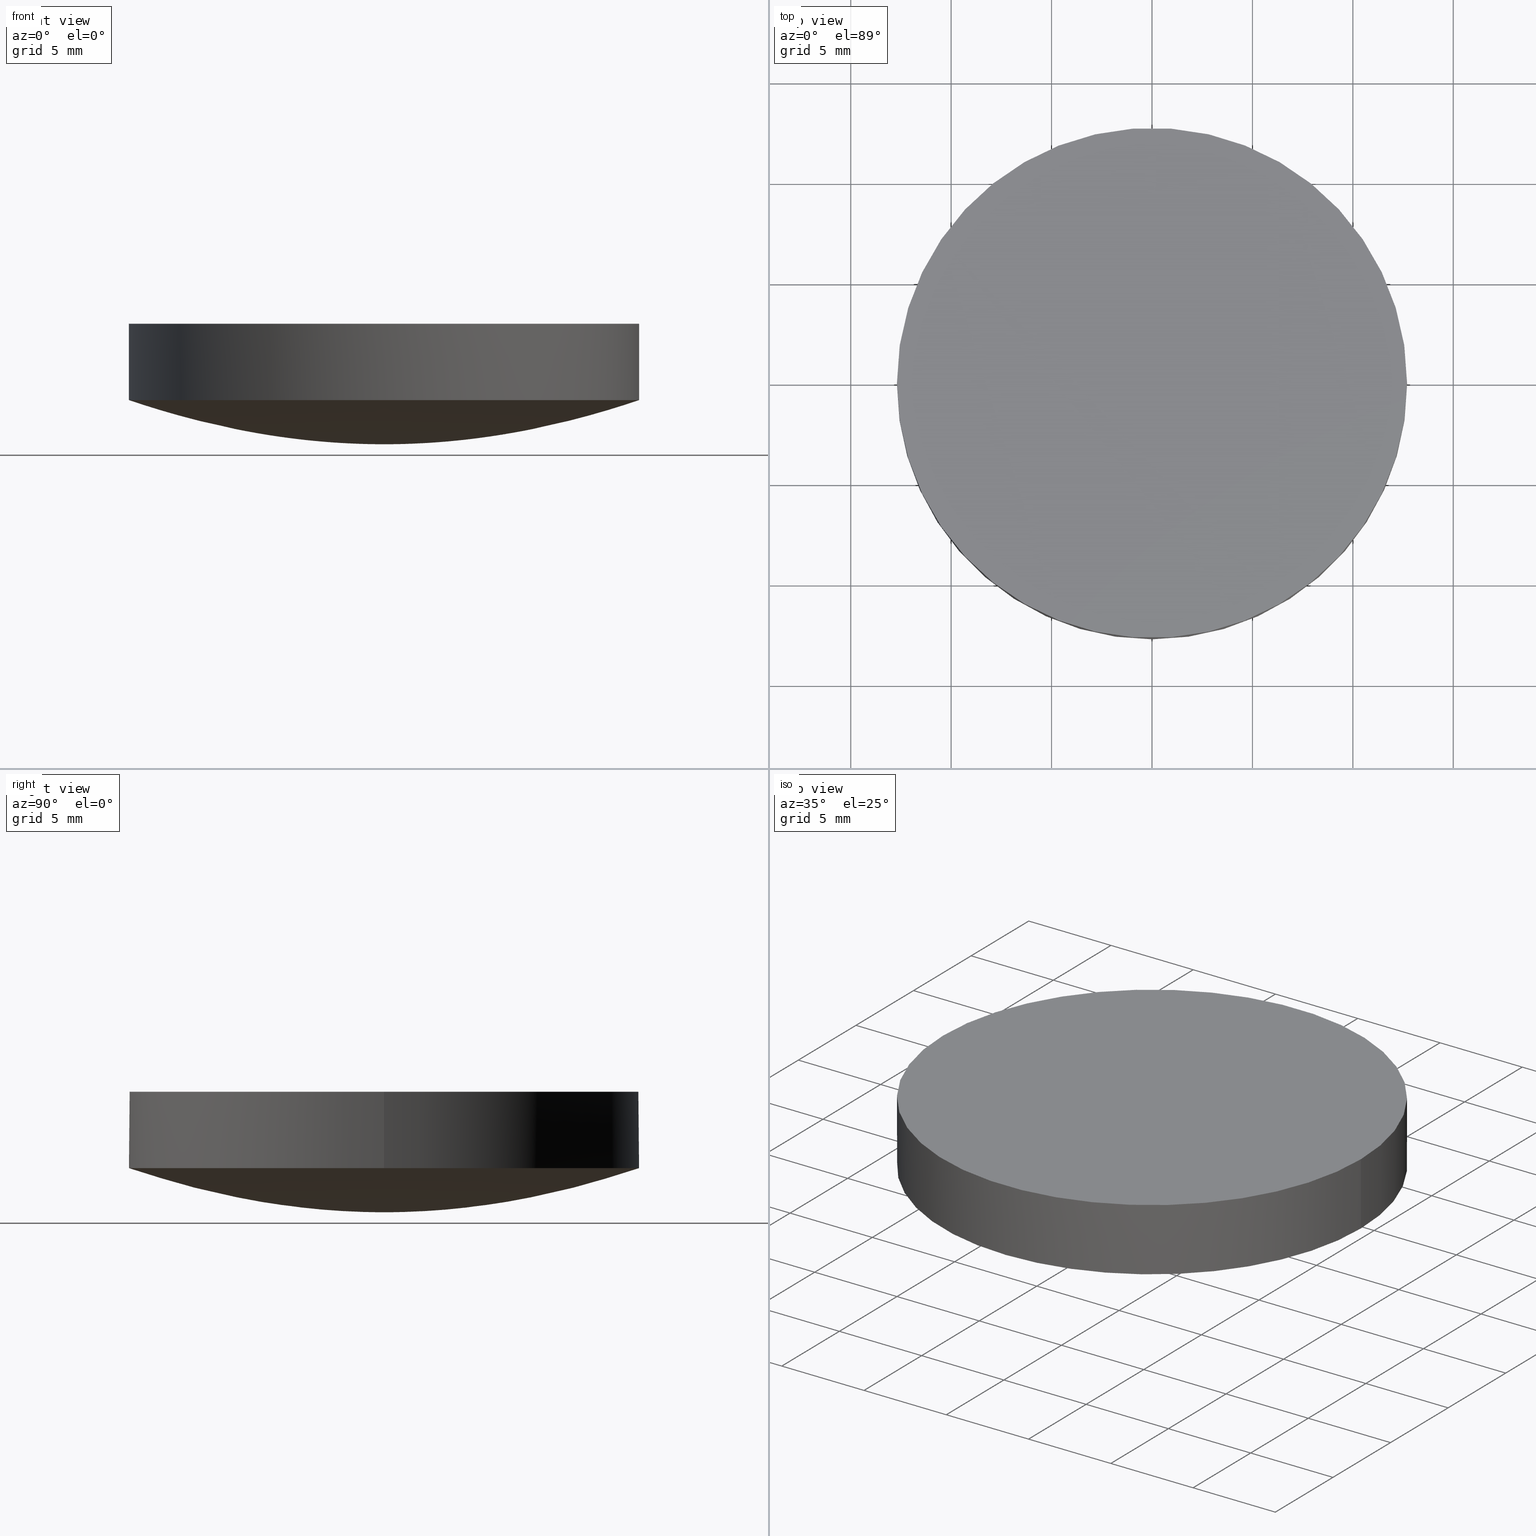
[diagram: canonical four-view strip — front | top / right | iso, engineering-drawing reading convention]
A machine part, canonical four-view strip (front | top / right | iso — engineering-drawing reading convention). The complete STEP part file that produces these views, byte-faithful:
ISO-10303-21;
HEADER;
FILE_DESCRIPTION (( 'STEP AP203' ),
    '1' );
FILE_NAME ('140007.STEP',
    '2021-03-15T05:15:59',
    ( '' ),
    ( '' ),
    'SwSTEP 2.0',
    'SolidWorks 2020',
    '' );
FILE_SCHEMA (( 'CONFIG_CONTROL_DESIGN' ));
ENDSEC;

DATA;
#1 = CARTESIAN_POINT ( 'NONE',  ( -3.241005728572560246E-17, -0.2646482014919789849, 0.000000000000000000 ) ) ;
#2 = DIRECTION ( 'NONE',  ( -6.993530863780509846E-17, -4.890947394265059749E-33, -1.000000000000000000 ) ) ;
#3 = CC_DESIGN_DATE_AND_TIME_ASSIGNMENT ( #75, #244, ( #543 ) ) ;
#4 = CARTESIAN_POINT ( 'NONE',  ( 12.00034429507980072, -2.204427484445339934E-15, 1.961206610540939810 ) ) ;
#5 = DIRECTION ( 'NONE',  ( -0.000000000000000000, -0.000000000000000000, -1.000000000000000000 ) ) ;
#6 = APPROVAL_STATUS ( 'not_yet_approved' ) ;
#7 = VECTOR ( 'NONE', #124, 1000.000000000000000 ) ;
#8 = CARTESIAN_POINT ( 'NONE',  ( 0.000000000000000000, 5.999939165251210405, 0.4967461427249240669 ) ) ;
#9 = VERTEX_POINT ( 'NONE', #460 ) ;
#10 = CARTESIAN_POINT ( 'NONE',  ( -5.117495180305819957, 5.117495180305819957, 0.3610946254766859709 ) ) ;
#11 = CARTESIAN_POINT ( 'NONE',  ( -9.881579680847281111, -9.881579680847281111, 1.340326071960550092 ) ) ;
#12 = CARTESIAN_POINT ( 'NONE',  ( 0.000000000000000000, 8.293636240054830466, 0.9473380225862650938 ) ) ;
#13 = CARTESIAN_POINT ( 'NONE',  ( -6.705604643652271157, 6.705604643652271157, 0.6204309067409240486 ) ) ;
#14 = CARTESIAN_POINT ( 'NONE',  ( -5.999939165251211293, -5.999939165251200635, 0.4967461427249240669 ) ) ;
#15 = CARTESIAN_POINT ( 'NONE',  ( -11.12050896531350119, 6.809347854630319951E-16, 1.686076382450860001 ) ) ;
#16 = AXIS2_PLACEMENT_3D ( 'NONE', #462, #336, #466 ) ;
#17 = DESIGN_CONTEXT ( 'detailed design', #130, 'design' ) ;
#18 = CARTESIAN_POINT ( 'NONE',  ( 5.117495180305819957, 5.117495180305819957, 0.3610946254766859709 ) ) ;
#19 = CARTESIAN_POINT ( 'NONE',  ( 7.587997314144440786, -1.393892493405849964E-15, 0.7937850246568419754 ) ) ;
#20 = CARTESIAN_POINT ( 'NONE',  ( -3.529323060183090277, 3.529323060183090277, 0.1705053634074679969 ) ) ;
#21 = CARTESIAN_POINT ( 'NONE',  ( 7.587997314144440786, 7.587997314144440786, 0.7937850246568420864 ) ) ;
#22 = CARTESIAN_POINT ( 'NONE',  ( 0.000000000000000000, 0.000000000000000000, 0.000000000000000000 ) ) ;
#23 = CARTESIAN_POINT ( 'NONE',  ( 5.999939165251200635, -5.999939165251211293, 0.4967461427249240669 ) ) ;
#24 = CARTESIAN_POINT ( 'NONE',  ( -1.189029927616370324E-16, -0.9709166173007780509, 0.007826623216660749671 ) ) ;
#25 = CARTESIAN_POINT ( 'NONE',  ( 0.9709166173007780509, 0.9709166173007770517, 0.007826623216660751406 ) ) ;
#26 = CARTESIAN_POINT ( 'NONE',  ( 3.529323060183090277, 3.529323060183090277, 0.1705053634074679969 ) ) ;
#27 = CARTESIAN_POINT ( 'NONE',  ( 3.529323060183089833, -6.483261283215241177E-16, 0.1705053634074680247 ) ) ;
#28 = CARTESIAN_POINT ( 'NONE',  ( 0.000000000000000000, 4.411807035218689776, 0.2678392450587179785 ) ) ;
#29 = CARTESIAN_POINT ( 'NONE',  ( -7.347806293803730947E-16, -5.999939165251210405, 0.4967461427249240669 ) ) ;
#30 = CARTESIAN_POINT ( 'NONE',  ( 3.529323060183090277, -3.529323060183090277, 0.1705053634074679969 ) ) ;
#31 = CALENDAR_DATE ( 2021, 15, 3 ) ;
#32 = CARTESIAN_POINT ( 'NONE',  ( 0.2646482014919789294, 0.2646482014919789294, 0.000000000000000000 ) ) ;
#33 = EDGE_CURVE ( 'NONE', #9, #488, #210, .T. ) ;
#34 = CARTESIAN_POINT ( 'NONE',  ( -1.555301434917141588E-15, -12.70000000000000462, 2.197451818612039975 ) ) ;
#35 =( NAMED_UNIT ( * ) PLANE_ANGLE_UNIT ( ) SI_UNIT ( $, .RADIAN. ) );
#36 = CARTESIAN_POINT ( 'NONE',  ( -1.469618322963560219E-15, -12.00034429507980072, 1.961206610540939810 ) ) ;
#37 = CARTESIAN_POINT ( 'NONE',  ( 0.000000000000000000, 12.69999999999999929, 2.197451818612039975 ) ) ;
#38 = APPROVAL_PERSON_ORGANIZATION ( #540, #137, #322 ) ;
#39 = CARTESIAN_POINT ( 'NONE',  ( -3.457931732471180000E-16, -2.823615539499820137, 0.1081007503329499964 ) ) ;
#40 = VERTEX_POINT ( 'NONE', #178 ) ;
#41 = EDGE_CURVE ( 'NONE', #195, #68, #83, .T. ) ;
#42 = COORDINATED_UNIVERSAL_TIME_OFFSET ( 8, 0, .AHEAD. ) ;
#43 = CARTESIAN_POINT ( 'NONE',  ( 0.000000000000000000, 12.00034429507980072, 1.961206610540939810 ) ) ;
#44 = DIRECTION ( 'NONE',  ( -0.000000000000000000, -0.000000000000000000, -1.000000000000000000 ) ) ;
#45 = CARTESIAN_POINT ( 'NONE',  ( 0.000000000000000000, 0.000000000000000000, 0.000000000000000000 ) ) ;
#46 = FACE_OUTER_BOUND ( 'NONE', #176, .T. ) ;
#47 = CARTESIAN_POINT ( 'NONE',  ( 0.000000000000000000, 5.117495180305819957, 0.3610946254766860264 ) ) ;
#48 = CARTESIAN_POINT ( 'NONE',  ( 0.000000000000000000, 9.881579680847279334, 1.340326071960550092 ) ) ;
#49 = B_SPLINE_CURVE_WITH_KNOTS ( 'NONE', 3,
 ( #414, #128, #503, #495, #365, #292, #81, #201, #325, #252, #408, #320, #405, #204, #411, #168, #450 ),
 .UNSPECIFIED., .F., .F.,
 ( 4, 1, 1, 1, 1, 1, 1, 1, 1, 1, 1, 1, 1, 1, 4 ),
 ( 0.000000000000000000, 0.1711261176727990052, 0.2135614419187649993, 0.2980152312877710208, 0.3400336964108119919, 0.4237076803100590094, 0.4653631990862669987, 0.5483733313384220320, 0.5897279448143709635, 0.6722051610619159678, 0.7133277638335130399, 0.7954152136409540219, 0.8363800606767990420, 0.9386724538563220310, 1.000000000000000000 ),
 .UNSPECIFIED. ) ;
#50 = CARTESIAN_POINT ( 'NONE',  ( -9.175968922900919367, -9.175968922900919367, 1.157604965641559902 ) ) ;
#51 = CARTESIAN_POINT ( 'NONE',  ( 0.000000000000000000, 6.705604643652271157, 0.6204309067409240486 ) ) ;
#52 = EDGE_CURVE ( 'NONE', #118, #9, #334, .T. ) ;
#53 = DATE_AND_TIME ( #337, #345 ) ;
#54 = CARTESIAN_POINT ( 'NONE',  ( 7.587997314144440786, -1.393892493405849964E-15, 0.7937850246568419754 ) ) ;
#55 = CARTESIAN_POINT ( 'NONE',  ( -9.175968922900919367, -9.175968922900919367, 1.157604965641559902 ) ) ;
#56 = COORDINATED_UNIVERSAL_TIME_OFFSET ( 8, 0, .AHEAD. ) ;
#57 = CARTESIAN_POINT ( 'NONE',  ( -6.705604643652271157, -6.705604643652271157, 0.6204309067409240486 ) ) ;
#58 = CARTESIAN_POINT ( 'NONE',  ( 9.175968922900928249, 9.175968922900919367, 1.157604965641559902 ) ) ;
#59 = CARTESIAN_POINT ( 'NONE',  ( -4.322174188810160128E-16, -3.529323060183089833, 0.1705053634074680247 ) ) ;
#60 = CARTESIAN_POINT ( 'NONE',  ( -11.12050896531349942, 11.12050896531349942, 1.686076382450860001 ) ) ;
#61 = CARTESIAN_POINT ( 'NONE',  ( -0.9709166173007770517, 0.9709166173007780509, 0.007826623216660751406 ) ) ;
#62 = CARTESIAN_POINT ( 'NONE',  ( 0.000000000000000000, 5.117495180305819957, 0.3610946254766860264 ) ) ;
#63 = CARTESIAN_POINT ( 'NONE',  ( 0.2646482014919789294, -0.2646482014919789294, 0.000000000000000000 ) ) ;
#64 = CARTESIAN_POINT ( 'NONE',  ( -1.853068808560519809, 1.853068808560519809, 0.04368035160071269407 ) ) ;
#65 = ORIENTED_EDGE ( 'NONE', *, *, #33, .T. ) ;
#66 = CARTESIAN_POINT ( 'NONE',  ( -4.411807035218689776, -4.411807035218680006, 0.2678392450587179230 ) ) ;
#67 = CARTESIAN_POINT ( 'NONE',  ( -3.529323060183090277, 3.529323060183090277, 0.1705053634074679969 ) ) ;
#68 = VERTEX_POINT ( 'NONE', #377 ) ;
#69 = CARTESIAN_POINT ( 'NONE',  ( 1.853068808560519809, -1.853068808560519809, 0.04368035160071269407 ) ) ;
#70 = CARTESIAN_POINT ( 'NONE',  ( -3.529323060183090277, -3.529323060183090277, 0.1705053634074679969 ) ) ;
#71 = EDGE_LOOP ( 'NONE', ( #111, #65, #356, #167, #403 ) ) ;
#72 = PERSON_AND_ORGANIZATION ( #343, #527 ) ;
#73 = CARTESIAN_POINT ( 'NONE',  ( 2.823615539499820581, -2.823615539499820581, 0.1081007503329500102 ) ) ;
#74 = CIRCLE ( 'NONE', #85, 12.70000000000000284 ) ;
#75 = DATE_AND_TIME ( #31, #207 ) ;
#76 = CARTESIAN_POINT ( 'NONE',  ( 0.000000000000000000, 11.12050896531350119, 1.686076382450860001 ) ) ;
#77 = DIRECTION ( 'NONE',  ( 1.000000000000000000, 0.000000000000000000, -6.829619984160658046E-17 ) ) ;
#78 = DIRECTION ( 'NONE',  ( -1.000000000000000000, 0.000000000000000000, 0.000000000000000000 ) ) ;
#79 = CARTESIAN_POINT ( 'NONE',  ( -12.69999999999999929, 7.776507174585690191E-16, 2.197451818612039975 ) ) ;
#80 = CYLINDRICAL_SURFACE ( 'NONE', #121, 12.69999999999999929 ) ;
#81 = CARTESIAN_POINT ( 'NONE',  ( 0.000000000000000000, 7.587997314144440786, 0.7937850246568419754 ) ) ;
#82 = DIRECTION ( 'NONE',  ( 1.000000000000000000, 0.000000000000000000, -6.829619984160658046E-17 ) ) ;
#83 = LINE ( 'NONE', #371, #507 ) ;
#84 = PRODUCT_RELATED_PRODUCT_CATEGORY ( 'detail', '', ( #442 ) ) ;
#85 = AXIS2_PLACEMENT_3D ( 'NONE', #458, #208, #78 ) ;
#86 = CARTESIAN_POINT ( 'NONE',  ( 12.69999999999999929, -2.332952152375710015E-15, 2.197451818612039975 ) ) ;
#87 = ORIENTED_EDGE ( 'NONE', *, *, #119, .T. ) ;
#88 = CARTESIAN_POINT ( 'NONE',  ( -11.12050896531350119, 6.809347854630319951E-16, 1.686076382450860001 ) ) ;
#89 = ORIENTED_EDGE ( 'NONE', *, *, #328, .F. ) ;
#90 = CARTESIAN_POINT ( 'NONE',  ( 5.999939165251210405, -1.102170944070560086E-15, 0.4967461427249240669 ) ) ;
#91 = CARTESIAN_POINT ( 'NONE',  ( -5.999939165251211293, 5.999939165251211293, 0.4967461427249240669 ) ) ;
#92 = CC_DESIGN_PERSON_AND_ORGANIZATION_ASSIGNMENT ( #363, #537, ( #543 ) ) ;
#93 = CARTESIAN_POINT ( 'NONE',  ( -9.292616622705699954E-16, -7.587997314144440786, 0.7937850246568419754 ) ) ;
#94 = LOCAL_TIME ( 13, 15, 59.00000000000000000, #99 ) ;
#95 = CARTESIAN_POINT ( 'NONE',  ( -7.587997314144440786, 4.646308311352849977E-16, 0.7937850246568419754 ) ) ;
#96 = DATE_AND_TIME ( #382, #185 ) ;
#97 = CARTESIAN_POINT ( 'NONE',  ( 9.881579680847281111, -9.881579680847281111, 1.340326071960550092 ) ) ;
#98 = CARTESIAN_POINT ( 'NONE',  ( 12.00034429507980072, 12.00034429507980072, 1.961206610540939588 ) ) ;
#99 = COORDINATED_UNIVERSAL_TIME_OFFSET ( 8, 0, .AHEAD. ) ;
#100 = CARTESIAN_POINT ( 'NONE',  ( -8.293636240054828690, 8.293636240054828690, 0.9473380225862649828 ) ) ;
#101 = CARTESIAN_POINT ( 'NONE',  ( 0.000000000000000000, 9.881579680847279334, 1.340326071960550092 ) ) ;
#102 = CARTESIAN_POINT ( 'NONE',  ( 6.705604643652271157, -1.231799589479459969E-15, 0.6204309067409240486 ) ) ;
#103 = CIRCLE ( 'NONE', #416, 12.69999999999999929 ) ;
#104 = CARTESIAN_POINT ( 'NONE',  ( 0.000000000000000000, 6.705604643652271157, 0.6204309067409240486 ) ) ;
#105 = CARTESIAN_POINT ( 'NONE',  ( -0.2646482014919789294, 0.2646482014919789294, 0.000000000000000000 ) ) ;
#106 = CARTESIAN_POINT ( 'NONE',  ( -2.823615539499820581, -2.823615539499820581, 0.1081007503329500102 ) ) ;
#107 = CARTESIAN_POINT ( 'NONE',  ( 0.000000000000000000, 2.823615539499820137, 0.1081007503329499964 ) ) ;
#108 = CARTESIAN_POINT ( 'NONE',  ( -3.241005728572560246E-17, -0.2646482014919789849, 0.000000000000000000 ) ) ;
#109 = CARTESIAN_POINT ( 'NONE',  ( -2.269354785003439840E-16, -1.853068808560520031, 0.04368035160071270101 ) ) ;
#110 = CARTESIAN_POINT ( 'NONE',  ( 0.9709166173007770517, -0.9709166173007780509, 0.007826623216660751406 ) ) ;
#111 = ORIENTED_EDGE ( 'NONE', *, *, #162, .F. ) ;
#112 =( GEOMETRIC_REPRESENTATION_CONTEXT ( 3 ) GLOBAL_UNCERTAINTY_ASSIGNED_CONTEXT ( ( #518 ) ) GLOBAL_UNIT_ASSIGNED_CONTEXT ( ( #132, #35, #368 ) ) REPRESENTATION_CONTEXT ( 'NONE', 'WORKASPACE' ) );
#113 = PRODUCT_DEFINITION_SHAPE ( 'NONE', 'NONE',  #543 ) ;
#114 = CARTESIAN_POINT ( 'NONE',  ( 0.000000000000000000, 0.000000000000000000, 0.000000000000000000 ) ) ;
#115 = CARTESIAN_POINT ( 'NONE',  ( -0.9709166173007780509, 5.945149638081860249E-17, 0.007826623216660749671 ) ) ;
#116 = CARTESIAN_POINT ( 'NONE',  ( 0.000000000000000000, 1.853068808560520031, 0.04368035160071270101 ) ) ;
#117 = CARTESIAN_POINT ( 'NONE',  ( 0.000000000000000000, 5.999939165251210405, 0.4967461427249240669 ) ) ;
#118 = VERTEX_POINT ( 'NONE', #34 ) ;
#119 = EDGE_CURVE ( 'NONE', #68, #488, #103, .T. ) ;
#120 = CARTESIAN_POINT ( 'NONE',  ( 0.000000000000000000, 0.000000000000000000, 0.000000000000000000 ) ) ;
#121 = AXIS2_PLACEMENT_3D ( 'NONE', #134, #203, #295 ) ;
#122 = CARTESIAN_POINT ( 'NONE',  ( 0.000000000000000000, 0.000000000000000000, 0.000000000000000000 ) ) ;
#123 = CARTESIAN_POINT ( 'NONE',  ( -4.322174188810160128E-16, -3.529323060183089833, 0.1705053634074680247 ) ) ;
#124 = DIRECTION ( 'NONE',  ( 6.993530863780509846E-17, 4.890947394265059749E-33, 1.000000000000000000 ) ) ;
#125 = DIRECTION ( 'NONE',  ( 0.000000000000000000, 0.000000000000000000, 1.000000000000000000 ) ) ;
#126 = DIRECTION ( 'NONE',  ( -0.000000000000000000, -0.000000000000000000, -1.000000000000000000 ) ) ;
#127 = DIRECTION ( 'NONE',  ( 6.993530863780509846E-17, 4.890947394265059749E-33, 1.000000000000000000 ) ) ;
#128 = CARTESIAN_POINT ( 'NONE',  ( 0.000000000000000000, 12.00034429507980072, 1.961206610540939810 ) ) ;
#129 = CARTESIAN_POINT ( 'NONE',  ( -9.292616622705699954E-16, -7.587997314144440786, 0.7937850246568419754 ) ) ;
#130 = APPLICATION_CONTEXT ( 'configuration controlled 3d designs of mechanical parts and assemblies' ) ;
#131 = CARTESIAN_POINT ( 'NONE',  ( 12.69999999999999929, 12.69999999999999929, 2.197451818612039975 ) ) ;
#132 =( LENGTH_UNIT ( ) NAMED_UNIT ( * ) SI_UNIT ( .MILLI., .METRE. ) );
#133 = CARTESIAN_POINT ( 'NONE',  ( -7.347806293803730947E-16, -5.999939165251210405, 0.4967461427249240669 ) ) ;
#134 = CARTESIAN_POINT ( 'NONE',  ( 8.881784197001250351E-16, -8.881784197001250351E-16, 2.197451818612039975 ) ) ;
#135 = CARTESIAN_POINT ( 'NONE',  ( 0.000000000000000000, 7.587997314144440786, 0.7937850246568419754 ) ) ;
#136 = CARTESIAN_POINT ( 'NONE',  ( 0.000000000000000000, 5.999939165251210405, 0.4967461427249240669 ) ) ;
#137 = APPROVAL ( #165, 'δָ��' ) ;
#138 = CARTESIAN_POINT ( 'NONE',  ( 0.000000000000000000, 5.117495180305819957, 0.3610946254766860264 ) ) ;
#139 = CARTESIAN_POINT ( 'NONE',  ( -1.469618322963560219E-15, -12.00034429507980072, 1.961206610540939810 ) ) ;
#140 = DATE_TIME_ROLE ( 'classification_date' ) ;
#141 = LOCAL_TIME ( 13, 15, 59.00000000000000000, #42 ) ;
#142 = CARTESIAN_POINT ( 'NONE',  ( -9.881579680847281111, 9.881579680847281111, 1.340326071960550092 ) ) ;
#143 = CARTESIAN_POINT ( 'NONE',  ( -9.881579680847279334, 6.050722463334570254E-16, 1.340326071960550092 ) ) ;
#144 = CARTESIAN_POINT ( 'NONE',  ( -1.015677507467560091E-15, -8.293636240054830466, 0.9473380225862650938 ) ) ;
#145 = ADVANCED_FACE ( 'NONE', ( #254 ), #410, .T. ) ;
#146 = CARTESIAN_POINT ( 'NONE',  ( -1.015677507467560091E-15, -8.293636240054830466, 0.9473380225862650938 ) ) ;
#147 = CARTESIAN_POINT ( 'NONE',  ( 9.881579680847279334, -1.815216739000370189E-15, 1.340326071960550092 ) ) ;
#148 = CARTESIAN_POINT ( 'NONE',  ( 6.705604643652271157, -1.231799589479459969E-15, 0.6204309067409240486 ) ) ;
#149 = CARTESIAN_POINT ( 'NONE',  ( -0.9709166173007780509, -0.9709166173007770517, 0.007826623216660751406 ) ) ;
#150 = CARTESIAN_POINT ( 'NONE',  ( -0.2646482014919789294, 0.2646482014919789294, 0.000000000000000000 ) ) ;
#151 = CARTESIAN_POINT ( 'NONE',  ( -3.529323060183090277, -3.529323060183090277, 0.1705053634074679969 ) ) ;
#152 = CARTESIAN_POINT ( 'NONE',  ( 1.853068808560520031, -3.404032177505150393E-16, 0.04368035160071270101 ) ) ;
#153 = CC_DESIGN_PERSON_AND_ORGANIZATION_ASSIGNMENT ( #514, #434, ( #437 ) ) ;
#154 = CARTESIAN_POINT ( 'NONE',  ( 1.853068808560519809, 1.853068808560519809, 0.04368035160071269407 ) ) ;
#155 = CARTESIAN_POINT ( 'NONE',  ( 5.117495180305819957, 5.117495180305819957, 0.3610946254766859709 ) ) ;
#156 = CARTESIAN_POINT ( 'NONE',  ( 0.000000000000000000, 1.853068808560520031, 0.04368035160071270101 ) ) ;
#157 = CARTESIAN_POINT ( 'NONE',  ( 0.000000000000000000, 2.823615539499820137, 0.1081007503329499964 ) ) ;
#158 = EDGE_LOOP ( 'NONE', ( #89, #420, #280, #333 ) ) ;
#159 = APPROVAL_PERSON_ORGANIZATION ( #341, #171, #421 ) ;
#160 = CARTESIAN_POINT ( 'NONE',  ( 0.000000000000000000, 0.000000000000000000, 0.000000000000000000 ) ) ;
#161 = CARTESIAN_POINT ( 'NONE',  ( -1.189029927616370324E-16, -0.9709166173007780509, 0.007826623216660749671 ) ) ;
#162 = EDGE_CURVE ( 'NONE', #9, #234, #225, .T. ) ;
#163 = CALENDAR_DATE ( 2021, 15, 3 ) ;
#164 = CARTESIAN_POINT ( 'NONE',  ( -1.189029927616370324E-16, -0.9709166173007780509, 0.007826623216660749671 ) ) ;
#165 = APPROVAL_STATUS ( 'not_yet_approved' ) ;
#166 = CARTESIAN_POINT ( 'NONE',  ( 11.12050896531349942, 11.12050896531349942, 1.686076382450860001 ) ) ;
#167 = ORIENTED_EDGE ( 'NONE', *, *, #41, .F. ) ;
#168 = CARTESIAN_POINT ( 'NONE',  ( 0.000000000000000000, 0.2646482014919789849, 0.000000000000000000 ) ) ;
#169 = CARTESIAN_POINT ( 'NONE',  ( 0.000000000000000000, 0.000000000000000000, 0.000000000000000000 ) ) ;
#170 = CARTESIAN_POINT ( 'NONE',  ( -12.00034429507980072, 12.00034429507980072, 1.961206610540939588 ) ) ;
#171 = APPROVAL ( #6, 'δָ��' ) ;
#172 = CARTESIAN_POINT ( 'NONE',  ( -5.402905364136339613E-16, -4.411807035218689776, 0.2678392450587179785 ) ) ;
#173 = CARTESIAN_POINT ( 'NONE',  ( 1.734723475976807094E-15, -1.345898117247522881E-15, 2.197451818612039975 ) ) ;
#174 = DIRECTION ( 'NONE',  ( 1.000000000000000000, 0.000000000000000000, 0.000000000000000000 ) ) ;
#175 = CARTESIAN_POINT ( 'NONE',  ( 12.00034429507980072, 12.00034429507980072, 1.961206610540939588 ) ) ;
#176 = EDGE_LOOP ( 'NONE', ( #497, #398, #237, #213, #87 ) ) ;
#177 = CARTESIAN_POINT ( 'NONE',  ( 0.000000000000000000, 11.12050896531350119, 1.686076382450860001 ) ) ;
#178 = CARTESIAN_POINT ( 'NONE',  ( 0.000000000000000000, 0.000000000000000000, 0.000000000000000000 ) ) ;
#179 = CARTESIAN_POINT ( 'NONE',  ( 5.117495180305819957, -5.117495180305819957, 0.3610946254766859709 ) ) ;
#180 = CARTESIAN_POINT ( 'NONE',  ( -1.123732097050620097E-15, -9.175968922900919367, 1.157604965641559902 ) ) ;
#181 = CARTESIAN_POINT ( 'NONE',  ( -5.999939165251210405, 3.673903146901869911E-16, 0.4967461427249240669 ) ) ;
#182 = CARTESIAN_POINT ( 'NONE',  ( -6.705604643652271157, 4.105998631598190199E-16, 0.6204309067409240486 ) ) ;
#183 = CC_DESIGN_PERSON_AND_ORGANIZATION_ASSIGNMENT ( #418, #455, ( #442 ) ) ;
#184 = CARTESIAN_POINT ( 'NONE',  ( -6.267124092213530108E-16, -5.117495180305819957, 0.3610946254766860264 ) ) ;
#185 = LOCAL_TIME ( 13, 15, 59.00000000000000000, #56 ) ;
#186 = CARTESIAN_POINT ( 'NONE',  ( -11.12050896531349942, -11.12050896531349942, 1.686076382450860001 ) ) ;
#187 = CARTESIAN_POINT ( 'NONE',  ( 8.293636240054830466, -1.523516261201350195E-15, 0.9473380225862650938 ) ) ;
#188 = CARTESIAN_POINT ( 'NONE',  ( 0.000000000000000000, 7.587997314144440786, 0.7937850246568419754 ) ) ;
#189 = CARTESIAN_POINT ( 'NONE',  ( 4.411807035218689776, -8.104358046204509913E-16, 0.2678392450587179785 ) ) ;
#190 = CARTESIAN_POINT ( 'NONE',  ( -1.361869570926060046E-15, -11.12050896531350119, 1.686076382450860001 ) ) ;
#191 = CARTESIAN_POINT ( 'NONE',  ( 0.000000000000000000, 0.000000000000000000, 0.000000000000000000 ) ) ;
#192 = CARTESIAN_POINT ( 'NONE',  ( 0.000000000000000000, 3.529323060183089833, 0.1705053634074680247 ) ) ;
#193 = CARTESIAN_POINT ( 'NONE',  ( 0.000000000000000000, 0.9709166173007780509, 0.007826623216660749671 ) ) ;
#194 = CARTESIAN_POINT ( 'NONE',  ( 0.000000000000000000, 4.411807035218689776, 0.2678392450587179785 ) ) ;
#195 = VERTEX_POINT ( 'NONE', #511 ) ;
#196 = CARTESIAN_POINT ( 'NONE',  ( -1.853068808560520031, 1.134677392501719920E-16, 0.04368035160071270101 ) ) ;
#197 = CARTESIAN_POINT ( 'NONE',  ( -4.411807035218689776, 4.411807035218689776, 0.2678392450587179230 ) ) ;
#198 = CARTESIAN_POINT ( 'NONE',  ( -3.241005728572560246E-17, -0.2646482014919789849, 0.000000000000000000 ) ) ;
#199 = CARTESIAN_POINT ( 'NONE',  ( 4.411807035218689776, -8.104358046204509913E-16, 0.2678392450587179785 ) ) ;
#200 = CARTESIAN_POINT ( 'NONE',  ( -0.2646482014919789294, -0.2646482014919789294, 0.000000000000000000 ) ) ;
#201 = CARTESIAN_POINT ( 'NONE',  ( 0.000000000000000000, 6.705604643652271157, 0.6204309067409240486 ) ) ;
#202 = CARTESIAN_POINT ( 'NONE',  ( 11.12050896531350119, -2.042804356389100028E-15, 1.686076382450860001 ) ) ;
#203 = DIRECTION ( 'NONE',  ( 6.993530863780509846E-17, 4.890947394265059749E-33, 1.000000000000000000 ) ) ;
#204 = CARTESIAN_POINT ( 'NONE',  ( 0.000000000000000000, 1.853068808560520031, 0.04368035160071270101 ) ) ;
#205 = CARTESIAN_POINT ( 'NONE',  ( 0.000000000000000000, 12.00034429507980072, 1.961206610540939810 ) ) ;
#206 = CARTESIAN_POINT ( 'NONE',  ( 0.000000000000000000, 12.00034429507980072, 1.961206610540939810 ) ) ;
#207 = LOCAL_TIME ( 13, 15, 59.00000000000000000, #452 ) ;
#208 = DIRECTION ( 'NONE',  ( -0.000000000000000000, -0.000000000000000000, -1.000000000000000000 ) ) ;
#209 = CARTESIAN_POINT ( 'NONE',  ( 0.000000000000000000, 0.000000000000000000, 0.000000000000000000 ) ) ;
#210 = LINE ( 'NONE', #330, #7 ) ;
#211 = DATE_AND_TIME ( #163, #141 ) ;
#212 = CARTESIAN_POINT ( 'NONE',  ( -12.00034429507980072, 12.00034429507980072, 1.961206610540939588 ) ) ;
#213 = ORIENTED_EDGE ( 'NONE', *, *, #41, .T. ) ;
#214 = CALENDAR_DATE ( 2021, 15, 3 ) ;
#215 = CARTESIAN_POINT ( 'NONE',  ( 6.705604643652271157, 6.705604643652271157, 0.6204309067409240486 ) ) ;
#216 = CIRCLE ( 'NONE', #489, 12.69999999999999929 ) ;
#217 = PERSON_AND_ORGANIZATION_ROLE ( 'creator' ) ;
#218 = CARTESIAN_POINT ( 'NONE',  ( -7.587997314144440786, -7.587997314144440786, 0.7937850246568420864 ) ) ;
#219 = CARTESIAN_POINT ( 'NONE',  ( -9.881579680847281111, 9.881579680847281111, 1.340326071960550092 ) ) ;
#220 = CARTESIAN_POINT ( 'NONE',  ( 7.587997314144440786, -7.587997314144440786, 0.7937850246568420864 ) ) ;
#221 = CARTESIAN_POINT ( 'NONE',  ( 0.000000000000000000, 11.12050896531350119, 1.686076382450860001 ) ) ;
#222 = PERSON_AND_ORGANIZATION ( #343, #527 ) ;
#223 = CARTESIAN_POINT ( 'NONE',  ( 6.705604643652271157, -6.705604643652271157, 0.6204309067409240486 ) ) ;
#224 = CARTESIAN_POINT ( 'NONE',  ( -8.293636240054830466, 5.078387537337820178E-16, 0.9473380225862650938 ) ) ;
#225 = CIRCLE ( 'NONE', #479, 12.70000000000000284 ) ;
#226 = CARTESIAN_POINT ( 'NONE',  ( -5.117495180305819957, 3.133562046106770477E-16, 0.3610946254766860264 ) ) ;
#227 = CARTESIAN_POINT ( 'NONE',  ( 8.293636240054828690, -8.293636240054828690, 0.9473380225862649828 ) ) ;
#228 = CARTESIAN_POINT ( 'NONE',  ( -1.853068808560519809, -1.853068808560519809, 0.04368035160071269407 ) ) ;
#229 = CARTESIAN_POINT ( 'NONE',  ( -9.175968922900919367, 5.618660485253100484E-16, 1.157604965641559902 ) ) ;
#230 = CARTESIAN_POINT ( 'NONE',  ( 0.9709166173007770517, -0.9709166173007780509, 0.007826623216660751406 ) ) ;
#231 = CARTESIAN_POINT ( 'NONE',  ( 5.117495180305819957, -5.117495180305819957, 0.3610946254766859709 ) ) ;
#232 = CARTESIAN_POINT ( 'NONE',  ( -5.402905364136339613E-16, -4.411807035218689776, 0.2678392450587179785 ) ) ;
#233 = CARTESIAN_POINT ( 'NONE',  ( 0.000000000000000000, 0.9709166173007780509, 0.007826623216660749671 ) ) ;
#234 = VERTEX_POINT ( 'NONE', #367 ) ;
#235 = CARTESIAN_POINT ( 'NONE',  ( -3.457931732471180000E-16, -2.823615539499820137, 0.1081007503329499964 ) ) ;
#236 = CARTESIAN_POINT ( 'NONE',  ( 0.000000000000000000, 2.823615539499820137, 0.1081007503329499964 ) ) ;
#237 = ORIENTED_EDGE ( 'NONE', *, *, #532, .F. ) ;
#238 = ADVANCED_FACE ( 'NONE', ( #324 ), #80, .T. ) ;
#239 = CARTESIAN_POINT ( 'NONE',  ( 2.823615539499820137, -5.186897598706770001E-16, 0.1081007503329499964 ) ) ;
#240 = CARTESIAN_POINT ( 'NONE',  ( 0.000000000000000000, 3.529323060183089833, 0.1705053634074680247 ) ) ;
#241 = APPROVAL_STATUS ( 'not_yet_approved' ) ;
#242 = CARTESIAN_POINT ( 'NONE',  ( -0.9709166173007780509, -0.9709166173007770517, 0.007826623216660751406 ) ) ;
#243 = ORIENTED_EDGE ( 'NONE', *, *, #357, .T. ) ;
#244 = DATE_TIME_ROLE ( 'creation_date' ) ;
#245 = CARTESIAN_POINT ( 'NONE',  ( -1.361869570926060046E-15, -11.12050896531350119, 1.686076382450860001 ) ) ;
#246 = APPLICATION_PROTOCOL_DEFINITION ( 'international standard', 'config_control_design', 1994, #130 ) ;
#247 = DIRECTION ( 'NONE',  ( -6.993530863780509846E-17, -4.890947394265059749E-33, -1.000000000000000000 ) ) ;
#248 = ADVANCED_FACE ( 'NONE', ( #46 ), #283, .T. ) ;
#249 = CARTESIAN_POINT ( 'NONE',  ( 12.69999999999999929, -2.332952152375710015E-15, 2.197451818612039975 ) ) ;
#250 = CARTESIAN_POINT ( 'NONE',  ( 0.000000000000000000, 0.000000000000000000, 0.000000000000000000 ) ) ;
#251 = CARTESIAN_POINT ( 'NONE',  ( -1.555301434917140010E-15, -12.69999999999999929, 2.197451818612039975 ) ) ;
#252 = CARTESIAN_POINT ( 'NONE',  ( 0.000000000000000000, 5.117495180305819957, 0.3610946254766860264 ) ) ;
#253 = CARTESIAN_POINT ( 'NONE',  ( 12.69999999999999929, 12.69999999999999929, 2.197451818612039975 ) ) ;
#254 = FACE_OUTER_BOUND ( 'NONE', #314, .T. ) ;
#255 = CARTESIAN_POINT ( 'NONE',  ( -11.12050896531349942, -11.12050896531349942, 1.686076382450860001 ) ) ;
#256 = ORIENTED_EDGE ( 'NONE', *, *, #119, .F. ) ;
#257 = CARTESIAN_POINT ( 'NONE',  ( 5.999939165251211293, 5.999939165251200635, 0.4967461427249240669 ) ) ;
#258 = CARTESIAN_POINT ( 'NONE',  ( 0.000000000000000000, 11.12050896531350119, 1.686076382450860001 ) ) ;
#259 = MANIFOLD_SOLID_BREP ( '����1', #284 ) ;
#260 = CARTESIAN_POINT ( 'NONE',  ( 0.000000000000000000, 9.175968922900919367, 1.157604965641559902 ) ) ;
#261 = CARTESIAN_POINT ( 'NONE',  ( -7.587997314144440786, -7.587997314144440786, 0.7937850246568420864 ) ) ;
#262 = CARTESIAN_POINT ( 'NONE',  ( -9.175968922900919367, 9.175968922900919367, 1.157604965641559902 ) ) ;
#263 = CARTESIAN_POINT ( 'NONE',  ( -12.00034429507980072, -12.00034429507980072, 1.961206610540939588 ) ) ;
#264 = CARTESIAN_POINT ( 'NONE',  ( -6.705604643652271157, 4.105998631598190199E-16, 0.6204309067409240486 ) ) ;
#265 = CARTESIAN_POINT ( 'NONE',  ( 0.000000000000000000, 9.175968922900919367, 1.157604965641559902 ) ) ;
#266 = CARTESIAN_POINT ( 'NONE',  ( 9.175968922900928249, 9.175968922900919367, 1.157604965641559902 ) ) ;
#267 = CARTESIAN_POINT ( 'NONE',  ( 11.12050896531349942, 11.12050896531349942, 1.686076382450860001 ) ) ;
#268 = CARTESIAN_POINT ( 'NONE',  ( 0.000000000000000000, 0.2646482014919789849, 0.000000000000000000 ) ) ;
#269 = CARTESIAN_POINT ( 'NONE',  ( -5.117495180305819957, 5.117495180305819957, 0.3610946254766859709 ) ) ;
#270 = CARTESIAN_POINT ( 'NONE',  ( 3.529323060183090277, -3.529323060183090277, 0.1705053634074679969 ) ) ;
#271 = CARTESIAN_POINT ( 'NONE',  ( 5.117495180305819957, -9.400686138320300585E-16, 0.3610946254766860264 ) ) ;
#272 = CARTESIAN_POINT ( 'NONE',  ( 0.000000000000000000, 0.2646482014919789849, 0.000000000000000000 ) ) ;
#273 = AXIS2_PLACEMENT_3D ( 'NONE', #122, #125, #174 ) ;
#274 = CARTESIAN_POINT ( 'NONE',  ( 2.823615539499820137, -5.186897598706770001E-16, 0.1081007503329499964 ) ) ;
#275 = ORIENTED_EDGE ( 'NONE', *, *, #425, .F. ) ;
#276 = CARTESIAN_POINT ( 'NONE',  ( 0.000000000000000000, 0.000000000000000000, 0.000000000000000000 ) ) ;
#277 = CARTESIAN_POINT ( 'NONE',  ( 0.000000000000000000, 0.2646482014919789849, 0.000000000000000000 ) ) ;
#278 = CARTESIAN_POINT ( 'NONE',  ( 0.000000000000000000, 4.411807035218689776, 0.2678392450587179785 ) ) ;
#279 = CARTESIAN_POINT ( 'NONE',  ( 0.000000000000000000, 4.411807035218689776, 0.2678392450587179785 ) ) ;
#280 = ORIENTED_EDGE ( 'NONE', *, *, #162, .T. ) ;
#281 = APPLICATION_PROTOCOL_DEFINITION ( 'international standard', 'config_control_design', 1994, #485 ) ;
#282 = CARTESIAN_POINT ( 'NONE',  ( 12.69999999999999929, -12.69999999999999929, 2.197451818612039975 ) ) ;
#283 = CYLINDRICAL_SURFACE ( 'NONE', #307, 12.69999999999999929 ) ;
#284 = CLOSED_SHELL ( 'NONE', ( #285, #238, #482, #248, #145 ) ) ;
#285 = ADVANCED_FACE ( 'NONE', ( #542 ), #524, .T. ) ;
#286 = MECHANICAL_CONTEXT ( 'NONE', #485, 'mechanical' ) ;
#287 = CARTESIAN_POINT ( 'NONE',  ( -1.555301434917140010E-15, -12.69999999999999929, 2.197451818612039975 ) ) ;
#288 = CARTESIAN_POINT ( 'NONE',  ( -12.69999999999999929, -12.69999999999999929, 2.197451818612039975 ) ) ;
#289 = APPROVAL_ROLE ( '' ) ;
#290 = CARTESIAN_POINT ( 'NONE',  ( -6.267124092213530108E-16, -5.117495180305819957, 0.3610946254766860264 ) ) ;
#291 = CARTESIAN_POINT ( 'NONE',  ( 0.000000000000000000, 12.69999999999999929, 2.197451818612039975 ) ) ;
#292 = CARTESIAN_POINT ( 'NONE',  ( 0.000000000000000000, 8.293636240054830466, 0.9473380225862650938 ) ) ;
#293 = DIRECTION ( 'NONE',  ( 1.000000000000000000, 0.000000000000000000, -6.829619984160658046E-17 ) ) ;
#294 = CARTESIAN_POINT ( 'NONE',  ( 0.000000000000000000, 0.000000000000000000, 0.000000000000000000 ) ) ;
#295 = DIRECTION ( 'NONE',  ( 1.000000000000000000, 0.000000000000000000, -6.829619984160658046E-17 ) ) ;
#296 = CARTESIAN_POINT ( 'NONE',  ( -8.293636240054830466, 5.078387537337820178E-16, 0.9473380225862650938 ) ) ;
#297 = CARTESIAN_POINT ( 'NONE',  ( -5.999939165251210405, 3.673903146901869911E-16, 0.4967461427249240669 ) ) ;
#298 = PERSON_AND_ORGANIZATION ( #343, #527 ) ;
#299 = CARTESIAN_POINT ( 'NONE',  ( -7.587997314144440786, 4.646308311352849977E-16, 0.7937850246568419754 ) ) ;
#300 = CARTESIAN_POINT ( 'NONE',  ( 0.000000000000000000, 12.00034429507980072, 1.961206610540939810 ) ) ;
#301 = CARTESIAN_POINT ( 'NONE',  ( 8.293636240054828690, 8.293636240054828690, 0.9473380225862649828 ) ) ;
#302 = CARTESIAN_POINT ( 'NONE',  ( -1.210144492666909909E-15, -9.881579680847279334, 1.340326071960550092 ) ) ;
#303 = CARTESIAN_POINT ( 'NONE',  ( 5.117495180305819957, -9.400686138320300585E-16, 0.3610946254766860264 ) ) ;
#304 = CARTESIAN_POINT ( 'NONE',  ( -6.705604643652271157, -6.705604643652271157, 0.6204309067409240486 ) ) ;
#305 = CARTESIAN_POINT ( 'NONE',  ( 0.000000000000000000, 9.881579680847279334, 1.340326071960550092 ) ) ;
#306 = CARTESIAN_POINT ( 'NONE',  ( 8.293636240054828690, 8.293636240054828690, 0.9473380225862649828 ) ) ;
#307 = AXIS2_PLACEMENT_3D ( 'NONE', #505, #127, #77 ) ;
#308 = CARTESIAN_POINT ( 'NONE',  ( 1.853068808560520031, -3.404032177505150393E-16, 0.04368035160071270101 ) ) ;
#309 = CARTESIAN_POINT ( 'NONE',  ( -3.529323060183089833, 2.161087094405080064E-16, 0.1705053634074680247 ) ) ;
#310 = CARTESIAN_POINT ( 'NONE',  ( -2.823615539499820137, 1.728965866235590000E-16, 0.1081007503329499964 ) ) ;
#311 = CARTESIAN_POINT ( 'NONE',  ( 1.853068808560519809, 1.853068808560519809, 0.04368035160071269407 ) ) ;
#312 = CARTESIAN_POINT ( 'NONE',  ( -4.411807035218689776, 2.701452682068169807E-16, 0.2678392450587179785 ) ) ;
#313 = CARTESIAN_POINT ( 'NONE',  ( -2.823615539499820581, 2.823615539499820581, 0.1081007503329500102 ) ) ;
#314 = EDGE_LOOP ( 'NONE', ( #256, #275 ) ) ;
#315 = CARTESIAN_POINT ( 'NONE',  ( -4.411807035218689776, 4.411807035218689776, 0.2678392450587179230 ) ) ;
#316 = AXIS2_PLACEMENT_3D ( 'NONE', #373, #44, #423 ) ;
#317 = CARTESIAN_POINT ( 'NONE',  ( 4.411807035218689776, 4.411807035218680006, 0.2678392450587179230 ) ) ;
#318 = CARTESIAN_POINT ( 'NONE',  ( 2.823615539499820581, -2.823615539499820581, 0.1081007503329500102 ) ) ;
#319 = CARTESIAN_POINT ( 'NONE',  ( -5.402905364136339613E-16, -4.411807035218689776, 0.2678392450587179785 ) ) ;
#320 = CARTESIAN_POINT ( 'NONE',  ( 0.000000000000000000, 3.529323060183089833, 0.1705053634074680247 ) ) ;
#321 = CARTESIAN_POINT ( 'NONE',  ( -12.69999999999999929, -12.69999999999999929, 2.197451818612039975 ) ) ;
#322 = APPROVAL_ROLE ( '' ) ;
#323 = CARTESIAN_POINT ( 'NONE',  ( -2.269354785003439840E-16, -1.853068808560520031, 0.04368035160071270101 ) ) ;
#324 = FACE_OUTER_BOUND ( 'NONE', #71, .T. ) ;
#325 = CARTESIAN_POINT ( 'NONE',  ( 0.000000000000000000, 5.999939165251210405, 0.4967461427249240669 ) ) ;
#326 = CARTESIAN_POINT ( 'NONE',  ( 0.000000000000000000, 0.000000000000000000, 0.000000000000000000 ) ) ;
#327 = CARTESIAN_POINT ( 'NONE',  ( -12.69999999999999929, 7.776507174585690191E-16, 2.197451818612039975 ) ) ;
#328 = EDGE_CURVE ( 'NONE', #118, #40, #385, .T. ) ;
#329 = CARTESIAN_POINT ( 'NONE',  ( 0.000000000000000000, 12.69999999999999929, 2.197451818612039975 ) ) ;
#330 = CARTESIAN_POINT ( 'NONE',  ( -12.69999999999999751, 6.671230152170134961E-16, 2.197451818612040864 ) ) ;
#331 = APPROVAL_DATE_TIME ( #211, #404 ) ;
#332 = FACE_OUTER_BOUND ( 'NONE', #158, .T. ) ;
#333 = ORIENTED_EDGE ( 'NONE', *, *, #500, .T. ) ;
#334 = CIRCLE ( 'NONE', #316, 12.70000000000000284 ) ;
#335 = CARTESIAN_POINT ( 'NONE',  ( -9.881579680847279334, 6.050722463334570254E-16, 1.340326071960550092 ) ) ;
#336 = DIRECTION ( 'NONE',  ( 0.000000000000000000, 0.000000000000000000, 1.000000000000000000 ) ) ;
#337 = CALENDAR_DATE ( 2021, 15, 3 ) ;
#338 = CARTESIAN_POINT ( 'NONE',  ( -7.587997314144440786, 7.587997314144440786, 0.7937850246568420864 ) ) ;
#339 = CARTESIAN_POINT ( 'NONE',  ( -8.293636240054828690, 8.293636240054828690, 0.9473380225862649828 ) ) ;
#340 = CC_DESIGN_PERSON_AND_ORGANIZATION_ASSIGNMENT ( #222, #217, ( #517 ) ) ;
#341 = PERSON_AND_ORGANIZATION ( #343, #527 ) ;
#342 = CARTESIAN_POINT ( 'NONE',  ( 9.881579680847281111, 9.881579680847281111, 1.340326071960550092 ) ) ;
#343 = PERSON ( 'δָ��', 'δָ��', 'δָ��', ('δָ��'), ('δָ��'), ('δָ��') ) ;
#344 = CARTESIAN_POINT ( 'NONE',  ( -8.211997263196380398E-16, -6.705604643652271157, 0.6204309067409240486 ) ) ;
#345 = LOCAL_TIME ( 13, 15, 59.00000000000000000, #498 ) ;
#346 = CARTESIAN_POINT ( 'NONE',  ( 0.000000000000000000, 9.175968922900919367, 1.157604965641559902 ) ) ;
#347 = CARTESIAN_POINT ( 'NONE',  ( 9.881579680847279334, -1.815216739000370189E-15, 1.340326071960550092 ) ) ;
#348 = CARTESIAN_POINT ( 'NONE',  ( -1.210144492666909909E-15, -9.881579680847279334, 1.340326071960550092 ) ) ;
#349 = CARTESIAN_POINT ( 'NONE',  ( 9.881579680847281111, -9.881579680847281111, 1.340326071960550092 ) ) ;
#350 = CARTESIAN_POINT ( 'NONE',  ( -2.823615539499820581, -2.823615539499820581, 0.1081007503329500102 ) ) ;
#351 = CARTESIAN_POINT ( 'NONE',  ( 12.00034429507980072, -2.204427484445339934E-15, 1.961206610540939810 ) ) ;
#352 = CARTESIAN_POINT ( 'NONE',  ( 0.000000000000000000, 2.823615539499820137, 0.1081007503329499964 ) ) ;
#353 = CARTESIAN_POINT ( 'NONE',  ( 3.529323060183090277, 3.529323060183090277, 0.1705053634074679969 ) ) ;
#354 = CARTESIAN_POINT ( 'NONE',  ( 0.000000000000000000, 3.529323060183089833, 0.1705053634074680247 ) ) ;
#355 = CARTESIAN_POINT ( 'NONE',  ( -1.853068808560519809, -1.853068808560519809, 0.04368035160071269407 ) ) ;
#356 = ORIENTED_EDGE ( 'NONE', *, *, #425, .T. ) ;
#357 = EDGE_CURVE ( 'NONE', #234, #195, #395, .T. ) ;
#358 = CARTESIAN_POINT ( 'NONE',  ( -0.2646482014919789294, -0.2646482014919789294, 0.000000000000000000 ) ) ;
#359 = CARTESIAN_POINT ( 'NONE',  ( -6.267124092213530108E-16, -5.117495180305819957, 0.3610946254766860264 ) ) ;
#360 = ORIENTED_EDGE ( 'NONE', *, *, #532, .T. ) ;
#361 = CARTESIAN_POINT ( 'NONE',  ( 0.000000000000000000, 0.000000000000000000, 0.000000000000000000 ) ) ;
#362 = CARTESIAN_POINT ( 'NONE',  ( 5.999939165251211293, 5.999939165251200635, 0.4967461427249240669 ) ) ;
#363 = PERSON_AND_ORGANIZATION ( #343, #527 ) ;
#364 = CARTESIAN_POINT ( 'NONE',  ( -1.123732097050620097E-15, -9.175968922900919367, 1.157604965641559902 ) ) ;
#365 = CARTESIAN_POINT ( 'NONE',  ( 0.000000000000000000, 9.175968922900919367, 1.157604965641559902 ) ) ;
#366 = CARTESIAN_POINT ( 'NONE',  ( 1.154110800375616501E-15, -8.881784197001250351E-16, 5.999999999999999112 ) ) ;
#367 = CARTESIAN_POINT ( 'NONE',  ( -3.851859888774471706E-31, 12.70000000000000284, 2.197451818612039975 ) ) ;
#368 =( NAMED_UNIT ( * ) SI_UNIT ( $, .STERADIAN. ) SOLID_ANGLE_UNIT ( ) );
#369 = CARTESIAN_POINT ( 'NONE',  ( -1.555301434917141588E-15, -12.70000000000000462, 2.197451818612039975 ) ) ;
#370 = APPROVAL_PERSON_ORGANIZATION ( #72, #404, #289 ) ;
#371 = CARTESIAN_POINT ( 'NONE',  ( 12.70000000000000107, -8.881784197001250351E-16, 2.197451818612039087 ) ) ;
#372 = CARTESIAN_POINT ( 'NONE',  ( -1.015677507467560091E-15, -8.293636240054830466, 0.9473380225862650938 ) ) ;
#373 = CARTESIAN_POINT ( 'NONE',  ( 1.734723475976807094E-15, -1.345898117247522881E-15, 2.197451818612039975 ) ) ;
#374 = CARTESIAN_POINT ( 'NONE',  ( -12.00034429507980072, -12.00034429507980072, 1.961206610540939588 ) ) ;
#375 = CARTESIAN_POINT ( 'NONE',  ( 1.154110800375616501E-15, -8.881784197001250351E-16, 5.999999999999999112 ) ) ;
#376 = CARTESIAN_POINT ( 'NONE',  ( -7.347806293803730947E-16, -5.999939165251210405, 0.4967461427249240669 ) ) ;
#377 = CARTESIAN_POINT ( 'NONE',  ( 12.70000000000000107, -8.881784197001250351E-16, 5.999999999999998224 ) ) ;
#378 = CARTESIAN_POINT ( 'NONE',  ( -5.117495180305819957, -5.117495180305819957, 0.3610946254766859709 ) ) ;
#379 = CARTESIAN_POINT ( 'NONE',  ( 0.000000000000000000, 9.175968922900919367, 1.157604965641559902 ) ) ;
#380 = CARTESIAN_POINT ( 'NONE',  ( -6.705604643652271157, 6.705604643652271157, 0.6204309067409240486 ) ) ;
#381 = CARTESIAN_POINT ( 'NONE',  ( 9.175968922900919367, -1.685598145575929948E-15, 1.157604965641559902 ) ) ;
#382 = CALENDAR_DATE ( 2021, 15, 3 ) ;
#383 = CARTESIAN_POINT ( 'NONE',  ( 0.000000000000000000, 5.999939165251210405, 0.4967461427249240669 ) ) ;
#384 = CARTESIAN_POINT ( 'NONE',  ( -7.587997314144440786, 7.587997314144440786, 0.7937850246568420864 ) ) ;
#385 = B_SPLINE_CURVE_WITH_KNOTS ( 'NONE', 3,
 ( #369, #456, #538, #499, #364, #372, #129, #544, #133, #290, #172, #123, #39, #323, #164, #1, #169 ),
 .UNSPECIFIED., .F., .F.,
 ( 4, 1, 1, 1, 1, 1, 1, 1, 1, 1, 1, 1, 1, 1, 4 ),
 ( 0.000000000000000000, 0.1711261176727990052, 0.2135614419187649993, 0.2980152312877710208, 0.3400336964108119919, 0.4237076803100590094, 0.4653631990862669987, 0.5483733313384220320, 0.5897279448143709635, 0.6722051610619159678, 0.7133277638335130399, 0.7954152136409540219, 0.8363800606767990420, 0.9386724538563220310, 1.000000000000000000 ),
 .UNSPECIFIED. ) ;
#386 = CC_DESIGN_APPROVAL ( #137, ( #517 ) ) ;
#387 = DATE_AND_TIME ( #214, #94 ) ;
#388 = CARTESIAN_POINT ( 'NONE',  ( 0.000000000000000000, 9.881579680847279334, 1.340326071960550092 ) ) ;
#389 = CARTESIAN_POINT ( 'NONE',  ( -9.292616622705699954E-16, -7.587997314144440786, 0.7937850246568419754 ) ) ;
#390 = CARTESIAN_POINT ( 'NONE',  ( 4.411807035218680006, -4.411807035218689776, 0.2678392450587179230 ) ) ;
#391 = CARTESIAN_POINT ( 'NONE',  ( 0.000000000000000000, 7.587997314144440786, 0.7937850246568419754 ) ) ;
#392 = CARTESIAN_POINT ( 'NONE',  ( 0.000000000000000000, 0.000000000000000000, 0.000000000000000000 ) ) ;
#393 = CARTESIAN_POINT ( 'NONE',  ( -4.411807035218689776, -4.411807035218680006, 0.2678392450587179230 ) ) ;
#394 = ADVANCED_BREP_SHAPE_REPRESENTATION ( '140007', ( #259, #273 ), #112 ) ;
#395 = CIRCLE ( 'NONE', #406, 12.70000000000000284 ) ;
#396 = CARTESIAN_POINT ( 'NONE',  ( -1.853068808560519809, 1.853068808560519809, 0.04368035160071269407 ) ) ;
#397 = CARTESIAN_POINT ( 'NONE',  ( 0.9709166173007780509, -1.783544891424559924E-16, 0.007826623216660749671 ) ) ;
#398 = ORIENTED_EDGE ( 'NONE', *, *, #52, .F. ) ;
#399 = CARTESIAN_POINT ( 'NONE',  ( 0.000000000000000000, 0.000000000000000000, 0.000000000000000000 ) ) ;
#400 = CARTESIAN_POINT ( 'NONE',  ( 0.000000000000000000, 5.117495180305819957, 0.3610946254766860264 ) ) ;
#401 = CARTESIAN_POINT ( 'NONE',  ( 4.411807035218689776, 4.411807035218680006, 0.2678392450587179230 ) ) ;
#402 = CARTESIAN_POINT ( 'NONE',  ( -4.411807035218689776, 2.701452682068169807E-16, 0.2678392450587179785 ) ) ;
#403 = ORIENTED_EDGE ( 'NONE', *, *, #357, .F. ) ;
#404 = APPROVAL ( #241, 'δָ��' ) ;
#405 = CARTESIAN_POINT ( 'NONE',  ( 0.000000000000000000, 2.823615539499820137, 0.1081007503329499964 ) ) ;
#406 = AXIS2_PLACEMENT_3D ( 'NONE', #465, #126, #504 ) ;
#407 = CARTESIAN_POINT ( 'NONE',  ( 0.000000000000000000, 0.9709166173007780509, 0.007826623216660749671 ) ) ;
#408 = CARTESIAN_POINT ( 'NONE',  ( 0.000000000000000000, 4.411807035218689776, 0.2678392450587179785 ) ) ;
#409 = CARTESIAN_POINT ( 'NONE',  ( 11.12050896531349942, -11.12050896531349942, 1.686076382450860001 ) ) ;
#410 = PLANE ( 'NONE',  #16 ) ;
#411 = CARTESIAN_POINT ( 'NONE',  ( 0.000000000000000000, 0.9709166173007780509, 0.007826623216660749671 ) ) ;
#412 = CARTESIAN_POINT ( 'NONE',  ( -12.00034429507980072, 7.348091614817809970E-16, 1.961206610540939810 ) ) ;
#413 = DIRECTION ( 'NONE',  ( -1.000000000000000000, 0.000000000000000000, 0.000000000000000000 ) ) ;
#414 = CARTESIAN_POINT ( 'NONE',  ( -3.851859888774471706E-31, 12.70000000000000284, 2.197451818612039975 ) ) ;
#415 = CARTESIAN_POINT ( 'NONE',  ( 0.000000000000000000, 0.000000000000000000, 0.000000000000000000 ) ) ;
#416 = AXIS2_PLACEMENT_3D ( 'NONE', #375, #2, #293 ) ;
#417 = EDGE_LOOP ( 'NONE', ( #360, #539, #509, #243 ) ) ;
#418 = PERSON_AND_ORGANIZATION ( #343, #527 ) ;
#419 = CARTESIAN_POINT ( 'NONE',  ( 0.000000000000000000, 12.69999999999999929, 2.197451818612039975 ) ) ;
#420 = ORIENTED_EDGE ( 'NONE', *, *, #52, .T. ) ;
#421 = APPROVAL_ROLE ( '' ) ;
#422 = CARTESIAN_POINT ( 'NONE',  ( 0.2646482014919789849, -4.861508592858829892E-17, 0.000000000000000000 ) ) ;
#423 = DIRECTION ( 'NONE',  ( -1.000000000000000000, 0.000000000000000000, 0.000000000000000000 ) ) ;
#424 = APPROVAL_DATE_TIME ( #53, #137 ) ;
#425 = EDGE_CURVE ( 'NONE', #488, #68, #216, .T. ) ;
#426 = CARTESIAN_POINT ( 'NONE',  ( -8.293636240054828690, -8.293636240054828690, 0.9473380225862649828 ) ) ;
#427 = CARTESIAN_POINT ( 'NONE',  ( 12.00034429507980072, -12.00034429507980072, 1.961206610540939588 ) ) ;
#428 = CC_DESIGN_SECURITY_CLASSIFICATION ( #437, ( #517 ) ) ;
#429 = SHAPE_DEFINITION_REPRESENTATION ( #113, #394 ) ;
#430 = CARTESIAN_POINT ( 'NONE',  ( -5.999939165251211293, 5.999939165251211293, 0.4967461427249240669 ) ) ;
#431 = CARTESIAN_POINT ( 'NONE',  ( 7.587997314144440786, -7.587997314144440786, 0.7937850246568420864 ) ) ;
#432 = CARTESIAN_POINT ( 'NONE',  ( 9.175968922900919367, -1.685598145575929948E-15, 1.157604965641559902 ) ) ;
#433 = CARTESIAN_POINT ( 'NONE',  ( 11.12050896531349942, -11.12050896531349942, 1.686076382450860001 ) ) ;
#434 = PERSON_AND_ORGANIZATION_ROLE ( 'classification_officer' ) ;
#435 = CARTESIAN_POINT ( 'NONE',  ( 0.000000000000000000, 6.705604643652271157, 0.6204309067409240486 ) ) ;
#436 = CARTESIAN_POINT ( 'NONE',  ( 11.12050896531350119, -2.042804356389100028E-15, 1.686076382450860001 ) ) ;
#437 = SECURITY_CLASSIFICATION ( '', '', #519 ) ;
#438 = CARTESIAN_POINT ( 'NONE',  ( -9.881579680847281111, -9.881579680847281111, 1.340326071960550092 ) ) ;
#439 = CARTESIAN_POINT ( 'NONE',  ( 9.175968922900919367, -9.175968922900928249, 1.157604965641559902 ) ) ;
#440 = CARTESIAN_POINT ( 'NONE',  ( -3.529323060183089833, 2.161087094405080064E-16, 0.1705053634074680247 ) ) ;
#441 = CARTESIAN_POINT ( 'NONE',  ( -5.117495180305819957, -5.117495180305819957, 0.3610946254766859709 ) ) ;
#442 = PRODUCT ( '140007', '140007', '', ( #286 ) ) ;
#443 = CARTESIAN_POINT ( 'NONE',  ( 2.823615539499820581, 2.823615539499820581, 0.1081007503329500102 ) ) ;
#444 = CARTESIAN_POINT ( 'NONE',  ( 5.999939165251210405, -1.102170944070560086E-15, 0.4967461427249240669 ) ) ;
#445 = CC_DESIGN_APPROVAL ( #404, ( #543 ) ) ;
#446 = CARTESIAN_POINT ( 'NONE',  ( 0.9709166173007780509, -1.783544891424559924E-16, 0.007826623216660749671 ) ) ;
#447 = CARTESIAN_POINT ( 'NONE',  ( -5.117495180305819957, 3.133562046106770477E-16, 0.3610946254766860264 ) ) ;
#448 = CARTESIAN_POINT ( 'NONE',  ( 0.000000000000000000, 0.000000000000000000, 0.000000000000000000 ) ) ;
#449 = CARTESIAN_POINT ( 'NONE',  ( -0.2646482014919789849, 1.620502864286280123E-17, 0.000000000000000000 ) ) ;
#450 = CARTESIAN_POINT ( 'NONE',  ( 0.000000000000000000, 0.000000000000000000, 0.000000000000000000 ) ) ;
#451 = CARTESIAN_POINT ( 'NONE',  ( -3.457931732471180000E-16, -2.823615539499820137, 0.1081007503329499964 ) ) ;
#452 = COORDINATED_UNIVERSAL_TIME_OFFSET ( 8, 0, .AHEAD. ) ;
#453 = CARTESIAN_POINT ( 'NONE',  ( 12.00034429507980072, -12.00034429507980072, 1.961206610540939588 ) ) ;
#454 = DIRECTION ( 'NONE',  ( 6.993530863780509846E-17, 4.890947394265059749E-33, 1.000000000000000000 ) ) ;
#455 = PERSON_AND_ORGANIZATION_ROLE ( 'design_owner' ) ;
#456 = CARTESIAN_POINT ( 'NONE',  ( -1.469618322963560219E-15, -12.00034429507980072, 1.961206610540939810 ) ) ;
#457 = CARTESIAN_POINT ( 'NONE',  ( 12.69999999999999929, -12.69999999999999929, 2.197451818612039975 ) ) ;
#458 = CARTESIAN_POINT ( 'NONE',  ( 1.734723475976807094E-15, -1.345898117247522881E-15, 2.197451818612039975 ) ) ;
#459 = CARTESIAN_POINT ( 'NONE',  ( 0.2646482014919789294, -0.2646482014919789294, 0.000000000000000000 ) ) ;
#460 = CARTESIAN_POINT ( 'NONE',  ( -12.70000000000000107, 6.671230152170136933E-16, 2.197451818612039975 ) ) ;
#461 = CARTESIAN_POINT ( 'NONE',  ( -12.69999999999999929, 12.69999999999999929, 2.197451818612039975 ) ) ;
#462 = CARTESIAN_POINT ( 'NONE',  ( 0.000000000000000000, 26.11199999999999832, 6.000000000000000000 ) ) ;
#463 = CC_DESIGN_APPROVAL ( #171, ( #437 ) ) ;
#464 = APPROVAL_DATE_TIME ( #96, #171 ) ;
#465 = CARTESIAN_POINT ( 'NONE',  ( 1.734723475976807094E-15, -1.345898117247522881E-15, 2.197451818612039975 ) ) ;
#466 = DIRECTION ( 'NONE',  ( 1.000000000000000000, 0.000000000000000000, -0.000000000000000000 ) ) ;
#467 = CC_DESIGN_DATE_AND_TIME_ASSIGNMENT ( #387, #140, ( #437 ) ) ;
#468 = CARTESIAN_POINT ( 'NONE',  ( 7.587997314144440786, 7.587997314144440786, 0.7937850246568420864 ) ) ;
#469 = CARTESIAN_POINT ( 'NONE',  ( -5.999939165251211293, -5.999939165251200635, 0.4967461427249240669 ) ) ;
#470 = CARTESIAN_POINT ( 'NONE',  ( -8.211997263196380398E-16, -6.705604643652271157, 0.6204309067409240486 ) ) ;
#471 = CARTESIAN_POINT ( 'NONE',  ( 0.000000000000000000, 8.293636240054830466, 0.9473380225862650938 ) ) ;
#472 = CARTESIAN_POINT ( 'NONE',  ( 0.000000000000000000, 7.587997314144440786, 0.7937850246568419754 ) ) ;
#473 = CARTESIAN_POINT ( 'NONE',  ( 0.000000000000000000, 8.293636240054830466, 0.9473380225862650938 ) ) ;
#474 = PERSON_AND_ORGANIZATION_ROLE ( 'design_supplier' ) ;
#475 = CARTESIAN_POINT ( 'NONE',  ( 0.000000000000000000, 8.293636240054830466, 0.9473380225862650938 ) ) ;
#476 = CARTESIAN_POINT ( 'NONE',  ( 9.881579680847281111, 9.881579680847281111, 1.340326071960550092 ) ) ;
#477 = CARTESIAN_POINT ( 'NONE',  ( -9.175968922900919367, 5.618660485253100484E-16, 1.157604965641559902 ) ) ;
#478 = CARTESIAN_POINT ( 'NONE',  ( 6.705604643652271157, 6.705604643652271157, 0.6204309067409240486 ) ) ;
#479 = AXIS2_PLACEMENT_3D ( 'NONE', #173, #5, #413 ) ;
#480 = CARTESIAN_POINT ( 'NONE',  ( 0.9709166173007780509, 0.9709166173007770517, 0.007826623216660751406 ) ) ;
#481 = CARTESIAN_POINT ( 'NONE',  ( -2.823615539499820137, 1.728965866235590000E-16, 0.1081007503329499964 ) ) ;
#482 = ADVANCED_FACE ( 'NONE', ( #332 ), #506, .T. ) ;
#483 = CARTESIAN_POINT ( 'NONE',  ( 0.000000000000000000, 3.529323060183089833, 0.1705053634074680247 ) ) ;
#484 = CARTESIAN_POINT ( 'NONE',  ( -0.9709166173007770517, 0.9709166173007780509, 0.007826623216660751406 ) ) ;
#485 = APPLICATION_CONTEXT ( 'configuration controlled 3d designs of mechanical parts and assemblies' ) ;
#486 = CARTESIAN_POINT ( 'NONE',  ( 3.529323060183089833, -6.483261283215241177E-16, 0.1705053634074680247 ) ) ;
#487 = CARTESIAN_POINT ( 'NONE',  ( 1.853068808560519809, -1.853068808560519809, 0.04368035160071269407 ) ) ;
#488 = VERTEX_POINT ( 'NONE', #528 ) ;
#489 = AXIS2_PLACEMENT_3D ( 'NONE', #366, #247, #82 ) ;
#490 = CARTESIAN_POINT ( 'NONE',  ( 0.2646482014919789294, 0.2646482014919789294, 0.000000000000000000 ) ) ;
#491 = CARTESIAN_POINT ( 'NONE',  ( -2.269354785003439840E-16, -1.853068808560520031, 0.04368035160071270101 ) ) ;
#492 = CC_DESIGN_PERSON_AND_ORGANIZATION_ASSIGNMENT ( #298, #474, ( #517 ) ) ;
#493 = CARTESIAN_POINT ( 'NONE',  ( -2.823615539499820581, 2.823615539499820581, 0.1081007503329500102 ) ) ;
#494 = CARTESIAN_POINT ( 'NONE',  ( 4.411807035218680006, -4.411807035218689776, 0.2678392450587179230 ) ) ;
#495 = CARTESIAN_POINT ( 'NONE',  ( 0.000000000000000000, 9.881579680847279334, 1.340326071960550092 ) ) ;
#496 = CARTESIAN_POINT ( 'NONE',  ( 0.000000000000000000, 0.000000000000000000, 0.000000000000000000 ) ) ;
#497 = ORIENTED_EDGE ( 'NONE', *, *, #33, .F. ) ;
#498 = COORDINATED_UNIVERSAL_TIME_OFFSET ( 8, 0, .AHEAD. ) ;
#499 = CARTESIAN_POINT ( 'NONE',  ( -1.210144492666909909E-15, -9.881579680847279334, 1.340326071960550092 ) ) ;
#500 = EDGE_CURVE ( 'NONE', #234, #40, #49, .T. ) ;
#501 = CARTESIAN_POINT ( 'NONE',  ( 0.000000000000000000, 0.2646482014919789849, 0.000000000000000000 ) ) ;
#502 = CARTESIAN_POINT ( 'NONE',  ( -12.00034429507980072, 7.348091614817809970E-16, 1.961206610540939810 ) ) ;
#503 = CARTESIAN_POINT ( 'NONE',  ( 0.000000000000000000, 11.12050896531350119, 1.686076382450860001 ) ) ;
#504 = DIRECTION ( 'NONE',  ( -1.000000000000000000, 0.000000000000000000, 0.000000000000000000 ) ) ;
#505 = CARTESIAN_POINT ( 'NONE',  ( 8.881784197001250351E-16, -8.881784197001250351E-16, 2.197451818612039975 ) ) ;
#506 =( BOUNDED_SURFACE ( )  B_SPLINE_SURFACE ( 3, 2, ( 
 ( #329, #461, #79, #321, #287, #282, #86, #253, #419 ),
 ( #43, #212, #412, #374, #36, #453, #4, #175, #205 ),
 ( #76, #508, #88, #255, #245, #409, #202, #166, #177 ),
 ( #388, #142, #335, #438, #348, #97, #147, #342, #305 ),
 ( #346, #262, #477, #50, #515, #510, #432, #266, #260 ),
 ( #12, #100, #296, #426, #144, #522, #187, #301, #475 ),
 ( #472, #338, #299, #218, #93, #220, #54, #468, #135 ),
 ( #435, #380, #264, #57, #470, #223, #102, #215, #512 ),
 ( #383, #430, #181, #14, #376, #520, #90, #257, #8 ),
 ( #47, #10, #226, #378, #184, #179, #303, #18, #138 ),
 ( #278, #315, #312, #66, #232, #390, #189, #401, #28 ),
 ( #354, #20, #440, #151, #59, #270, #486, #26, #483 ),
 ( #352, #493, #310, #350, #235, #318, #239, #443, #107 ),
 ( #156, #396, #196, #228, #109, #69, #308, #154, #116 ),
 ( #193, #61, #525, #149, #24, #230, #446, #480, #535 ),
 ( #272, #105, #530, #358, #198, #63, #533, #490, #268 ),
 ( #392, #399, #276, #114, #448, #22, #361, #191, #160 ) ),
 .UNSPECIFIED., .F., .T., .F. ) 
 B_SPLINE_SURFACE_WITH_KNOTS ( ( 4, 1, 1, 1, 1, 1, 1, 1, 1, 1, 1, 1, 1, 1, 4 ),
 ( 3, 2, 2, 2, 3 ),
 ( 0.000000000000000000, 0.1711261176727990052, 0.2135614419187649993, 0.2980152312877710208, 0.3400336964108119919, 0.4237076803100590094, 0.4653631990862669987, 0.5483733313384220320, 0.5897279448143709635, 0.6722051610619159678, 0.7133277638335130399, 0.7954152136409540219, 0.8363800606767990420, 0.9386724538563220310, 1.000000000000000000 ),
 ( 0.000000000000000000, 90.00000000000000000, 180.0000000000000000, 270.0000000000000000, 360.0000000000000000 ),
 .UNSPECIFIED. ) 
 GEOMETRIC_REPRESENTATION_ITEM ( )  RATIONAL_B_SPLINE_SURFACE ( (
 ( 1.000000000000000000, 0.7071067811865480168, 1.000000000000000000, 0.7071067811865480168, 1.000000000000000000, 0.7071067811865480168, 1.000000000000000000, 0.7071067811865480168, 1.000000000000000000),
 ( 1.000000000000000000, 0.7071067811865480168, 1.000000000000000000, 0.7071067811865480168, 1.000000000000000000, 0.7071067811865480168, 1.000000000000000000, 0.7071067811865480168, 1.000000000000000000),
 ( 1.000000000000000000, 0.7071067811865480168, 1.000000000000000000, 0.7071067811865480168, 1.000000000000000000, 0.7071067811865480168, 1.000000000000000000, 0.7071067811865480168, 1.000000000000000000),
 ( 1.000000000000000000, 0.7071067811865480168, 1.000000000000000000, 0.7071067811865480168, 1.000000000000000000, 0.7071067811865480168, 1.000000000000000000, 0.7071067811865480168, 1.000000000000000000),
 ( 1.000000000000000000, 0.7071067811865480168, 1.000000000000000000, 0.7071067811865480168, 1.000000000000000000, 0.7071067811865480168, 1.000000000000000000, 0.7071067811865480168, 1.000000000000000000),
 ( 1.000000000000000000, 0.7071067811865480168, 1.000000000000000000, 0.7071067811865480168, 1.000000000000000000, 0.7071067811865480168, 1.000000000000000000, 0.7071067811865480168, 1.000000000000000000),
 ( 1.000000000000000000, 0.7071067811865480168, 1.000000000000000000, 0.7071067811865480168, 1.000000000000000000, 0.7071067811865480168, 1.000000000000000000, 0.7071067811865480168, 1.000000000000000000),
 ( 1.000000000000000000, 0.7071067811865480168, 1.000000000000000000, 0.7071067811865480168, 1.000000000000000000, 0.7071067811865480168, 1.000000000000000000, 0.7071067811865480168, 1.000000000000000000),
 ( 1.000000000000000000, 0.7071067811865480168, 1.000000000000000000, 0.7071067811865480168, 1.000000000000000000, 0.7071067811865480168, 1.000000000000000000, 0.7071067811865480168, 1.000000000000000000),
 ( 1.000000000000000000, 0.7071067811865480168, 1.000000000000000000, 0.7071067811865480168, 1.000000000000000000, 0.7071067811865480168, 1.000000000000000000, 0.7071067811865480168, 1.000000000000000000),
 ( 1.000000000000000000, 0.7071067811865480168, 1.000000000000000000, 0.7071067811865480168, 1.000000000000000000, 0.7071067811865480168, 1.000000000000000000, 0.7071067811865480168, 1.000000000000000000),
 ( 1.000000000000000000, 0.7071067811865480168, 1.000000000000000000, 0.7071067811865480168, 1.000000000000000000, 0.7071067811865480168, 1.000000000000000000, 0.7071067811865480168, 1.000000000000000000),
 ( 1.000000000000000000, 0.7071067811865480168, 1.000000000000000000, 0.7071067811865480168, 1.000000000000000000, 0.7071067811865480168, 1.000000000000000000, 0.7071067811865480168, 1.000000000000000000),
 ( 1.000000000000000000, 0.7071067811865480168, 1.000000000000000000, 0.7071067811865480168, 1.000000000000000000, 0.7071067811865480168, 1.000000000000000000, 0.7071067811865480168, 1.000000000000000000),
 ( 1.000000000000000000, 0.7071067811865480168, 1.000000000000000000, 0.7071067811865480168, 1.000000000000000000, 0.7071067811865480168, 1.000000000000000000, 0.7071067811865480168, 1.000000000000000000),
 ( 1.000000000000000000, 0.7071067811865480168, 1.000000000000000000, 0.7071067811865480168, 1.000000000000000000, 0.7071067811865480168, 1.000000000000000000, 0.7071067811865480168, 1.000000000000000000),
 ( 1.000000000000000000, 0.7071067811865480168, 1.000000000000000000, 0.7071067811865480168, 1.000000000000000000, 0.7071067811865480168, 1.000000000000000000, 0.7071067811865480168, 1.000000000000000000) ) ) 
 REPRESENTATION_ITEM ( '' )  SURFACE ( )  );
#507 = VECTOR ( 'NONE', #454, 1000.000000000000000 ) ;
#508 = CARTESIAN_POINT ( 'NONE',  ( -11.12050896531349942, 11.12050896531349942, 1.686076382450860001 ) ) ;
#509 = ORIENTED_EDGE ( 'NONE', *, *, #500, .F. ) ;
#510 = CARTESIAN_POINT ( 'NONE',  ( 9.175968922900919367, -9.175968922900928249, 1.157604965641559902 ) ) ;
#511 = CARTESIAN_POINT ( 'NONE',  ( 12.70000000000000462, -8.881784197001248379E-16, 2.197451818612039975 ) ) ;
#512 = CARTESIAN_POINT ( 'NONE',  ( 0.000000000000000000, 6.705604643652271157, 0.6204309067409240486 ) ) ;
#513 = CARTESIAN_POINT ( 'NONE',  ( 8.293636240054830466, -1.523516261201350195E-15, 0.9473380225862650938 ) ) ;
#514 = PERSON_AND_ORGANIZATION ( #343, #527 ) ;
#515 = CARTESIAN_POINT ( 'NONE',  ( -1.123732097050620097E-15, -9.175968922900919367, 1.157604965641559902 ) ) ;
#516 = CARTESIAN_POINT ( 'NONE',  ( 6.705604643652271157, -6.705604643652271157, 0.6204309067409240486 ) ) ;
#517 = PRODUCT_DEFINITION_FORMATION_WITH_SPECIFIED_SOURCE ( '�κ�', '', #442, .NOT_KNOWN. ) ;
#518 = UNCERTAINTY_MEASURE_WITH_UNIT (LENGTH_MEASURE( 1.000000000000000082E-05 ), #132, 'distance_accuracy_value', 'NONE');
#519 = SECURITY_CLASSIFICATION_LEVEL ( 'unclassified' ) ;
#520 = CARTESIAN_POINT ( 'NONE',  ( 5.999939165251200635, -5.999939165251211293, 0.4967461427249240669 ) ) ;
#521 = CARTESIAN_POINT ( 'NONE',  ( -9.175968922900919367, 9.175968922900919367, 1.157604965641559902 ) ) ;
#522 = CARTESIAN_POINT ( 'NONE',  ( 8.293636240054828690, -8.293636240054828690, 0.9473380225862649828 ) ) ;
#523 = CARTESIAN_POINT ( 'NONE',  ( -8.293636240054828690, -8.293636240054828690, 0.9473380225862649828 ) ) ;
#524 =( BOUNDED_SURFACE ( )  B_SPLINE_SURFACE ( 3, 2, ( 
 ( #291, #545, #327, #288, #251, #457, #249, #131, #37 ),
 ( #206, #170, #502, #263, #139, #427, #351, #98, #300 ),
 ( #258, #60, #15, #186, #190, #433, #436, #267, #221 ),
 ( #101, #219, #143, #11, #302, #349, #347, #476, #48 ),
 ( #379, #521, #229, #55, #180, #439, #381, #58, #265 ),
 ( #473, #339, #224, #523, #146, #227, #513, #306, #471 ),
 ( #391, #384, #95, #261, #389, #431, #19, #21, #188 ),
 ( #51, #13, #182, #304, #344, #516, #148, #478, #104 ),
 ( #136, #91, #297, #469, #29, #23, #444, #362, #117 ),
 ( #62, #269, #447, #441, #359, #231, #271, #155, #400 ),
 ( #194, #197, #402, #393, #319, #494, #199, #317, #279 ),
 ( #192, #67, #309, #70, #534, #30, #27, #353, #240 ),
 ( #157, #313, #481, #106, #451, #73, #274, #536, #236 ),
 ( #529, #64, #526, #355, #491, #487, #152, #311, #531 ),
 ( #233, #484, #115, #242, #161, #110, #397, #25, #407 ),
 ( #277, #150, #449, #200, #108, #459, #422, #32, #501 ),
 ( #120, #45, #326, #541, #209, #496, #294, #250, #415 ) ),
 .UNSPECIFIED., .F., .T., .T. ) 
 B_SPLINE_SURFACE_WITH_KNOTS ( ( 4, 1, 1, 1, 1, 1, 1, 1, 1, 1, 1, 1, 1, 1, 4 ),
 ( 3, 2, 2, 2, 3 ),
 ( 0.000000000000000000, 0.1711261176727990052, 0.2135614419187649993, 0.2980152312877710208, 0.3400336964108119919, 0.4237076803100590094, 0.4653631990862669987, 0.5483733313384220320, 0.5897279448143709635, 0.6722051610619159678, 0.7133277638335130399, 0.7954152136409540219, 0.8363800606767990420, 0.9386724538563220310, 1.000000000000000000 ),
 ( 0.000000000000000000, 90.00000000000000000, 180.0000000000000000, 270.0000000000000000, 360.0000000000000000 ),
 .UNSPECIFIED. ) 
 GEOMETRIC_REPRESENTATION_ITEM ( )  RATIONAL_B_SPLINE_SURFACE ( (
 ( 1.000000000000000000, 0.7071067811865480168, 1.000000000000000000, 0.7071067811865480168, 1.000000000000000000, 0.7071067811865480168, 1.000000000000000000, 0.7071067811865480168, 1.000000000000000000),
 ( 1.000000000000000000, 0.7071067811865480168, 1.000000000000000000, 0.7071067811865480168, 1.000000000000000000, 0.7071067811865480168, 1.000000000000000000, 0.7071067811865480168, 1.000000000000000000),
 ( 1.000000000000000000, 0.7071067811865480168, 1.000000000000000000, 0.7071067811865480168, 1.000000000000000000, 0.7071067811865480168, 1.000000000000000000, 0.7071067811865480168, 1.000000000000000000),
 ( 1.000000000000000000, 0.7071067811865480168, 1.000000000000000000, 0.7071067811865480168, 1.000000000000000000, 0.7071067811865480168, 1.000000000000000000, 0.7071067811865480168, 1.000000000000000000),
 ( 1.000000000000000000, 0.7071067811865480168, 1.000000000000000000, 0.7071067811865480168, 1.000000000000000000, 0.7071067811865480168, 1.000000000000000000, 0.7071067811865480168, 1.000000000000000000),
 ( 1.000000000000000000, 0.7071067811865480168, 1.000000000000000000, 0.7071067811865480168, 1.000000000000000000, 0.7071067811865480168, 1.000000000000000000, 0.7071067811865480168, 1.000000000000000000),
 ( 1.000000000000000000, 0.7071067811865480168, 1.000000000000000000, 0.7071067811865480168, 1.000000000000000000, 0.7071067811865480168, 1.000000000000000000, 0.7071067811865480168, 1.000000000000000000),
 ( 1.000000000000000000, 0.7071067811865480168, 1.000000000000000000, 0.7071067811865480168, 1.000000000000000000, 0.7071067811865480168, 1.000000000000000000, 0.7071067811865480168, 1.000000000000000000),
 ( 1.000000000000000000, 0.7071067811865480168, 1.000000000000000000, 0.7071067811865480168, 1.000000000000000000, 0.7071067811865480168, 1.000000000000000000, 0.7071067811865480168, 1.000000000000000000),
 ( 1.000000000000000000, 0.7071067811865480168, 1.000000000000000000, 0.7071067811865480168, 1.000000000000000000, 0.7071067811865480168, 1.000000000000000000, 0.7071067811865480168, 1.000000000000000000),
 ( 1.000000000000000000, 0.7071067811865480168, 1.000000000000000000, 0.7071067811865480168, 1.000000000000000000, 0.7071067811865480168, 1.000000000000000000, 0.7071067811865480168, 1.000000000000000000),
 ( 1.000000000000000000, 0.7071067811865480168, 1.000000000000000000, 0.7071067811865480168, 1.000000000000000000, 0.7071067811865480168, 1.000000000000000000, 0.7071067811865480168, 1.000000000000000000),
 ( 1.000000000000000000, 0.7071067811865480168, 1.000000000000000000, 0.7071067811865480168, 1.000000000000000000, 0.7071067811865480168, 1.000000000000000000, 0.7071067811865480168, 1.000000000000000000),
 ( 1.000000000000000000, 0.7071067811865480168, 1.000000000000000000, 0.7071067811865480168, 1.000000000000000000, 0.7071067811865480168, 1.000000000000000000, 0.7071067811865480168, 1.000000000000000000),
 ( 1.000000000000000000, 0.7071067811865480168, 1.000000000000000000, 0.7071067811865480168, 1.000000000000000000, 0.7071067811865480168, 1.000000000000000000, 0.7071067811865480168, 1.000000000000000000),
 ( 1.000000000000000000, 0.7071067811865480168, 1.000000000000000000, 0.7071067811865480168, 1.000000000000000000, 0.7071067811865480168, 1.000000000000000000, 0.7071067811865480168, 1.000000000000000000),
 ( 1.000000000000000000, 0.7071067811865480168, 1.000000000000000000, 0.7071067811865480168, 1.000000000000000000, 0.7071067811865480168, 1.000000000000000000, 0.7071067811865480168, 1.000000000000000000) ) ) 
 REPRESENTATION_ITEM ( '' )  SURFACE ( )  );
#525 = CARTESIAN_POINT ( 'NONE',  ( -0.9709166173007780509, 5.945149638081860249E-17, 0.007826623216660749671 ) ) ;
#526 = CARTESIAN_POINT ( 'NONE',  ( -1.853068808560520031, 1.134677392501719920E-16, 0.04368035160071270101 ) ) ;
#527 = ORGANIZATION ( 'δָ��', 'δָ��', '' ) ;
#528 = CARTESIAN_POINT ( 'NONE',  ( -12.69999999999999751, 6.671230152170134961E-16, 6.000000000000000000 ) ) ;
#529 = CARTESIAN_POINT ( 'NONE',  ( 0.000000000000000000, 1.853068808560520031, 0.04368035160071270101 ) ) ;
#530 = CARTESIAN_POINT ( 'NONE',  ( -0.2646482014919789849, 1.620502864286280123E-17, 0.000000000000000000 ) ) ;
#531 = CARTESIAN_POINT ( 'NONE',  ( 0.000000000000000000, 1.853068808560520031, 0.04368035160071270101 ) ) ;
#532 = EDGE_CURVE ( 'NONE', #195, #118, #74, .T. ) ;
#533 = CARTESIAN_POINT ( 'NONE',  ( 0.2646482014919789849, -4.861508592858829892E-17, 0.000000000000000000 ) ) ;
#534 = CARTESIAN_POINT ( 'NONE',  ( -4.322174188810160128E-16, -3.529323060183089833, 0.1705053634074680247 ) ) ;
#535 = CARTESIAN_POINT ( 'NONE',  ( 0.000000000000000000, 0.9709166173007780509, 0.007826623216660749671 ) ) ;
#536 = CARTESIAN_POINT ( 'NONE',  ( 2.823615539499820581, 2.823615539499820581, 0.1081007503329500102 ) ) ;
#537 = PERSON_AND_ORGANIZATION_ROLE ( 'creator' ) ;
#538 = CARTESIAN_POINT ( 'NONE',  ( -1.361869570926060046E-15, -11.12050896531350119, 1.686076382450860001 ) ) ;
#539 = ORIENTED_EDGE ( 'NONE', *, *, #328, .T. ) ;
#540 = PERSON_AND_ORGANIZATION ( #343, #527 ) ;
#541 = CARTESIAN_POINT ( 'NONE',  ( 0.000000000000000000, 0.000000000000000000, 0.000000000000000000 ) ) ;
#542 = FACE_OUTER_BOUND ( 'NONE', #417, .T. ) ;
#543 = PRODUCT_DEFINITION ( 'δ֪', '', #517, #17 ) ;
#544 = CARTESIAN_POINT ( 'NONE',  ( -8.211997263196380398E-16, -6.705604643652271157, 0.6204309067409240486 ) ) ;
#545 = CARTESIAN_POINT ( 'NONE',  ( -12.69999999999999929, 12.69999999999999929, 2.197451818612039975 ) ) ;
ENDSEC;
END-ISO-10303-21;
